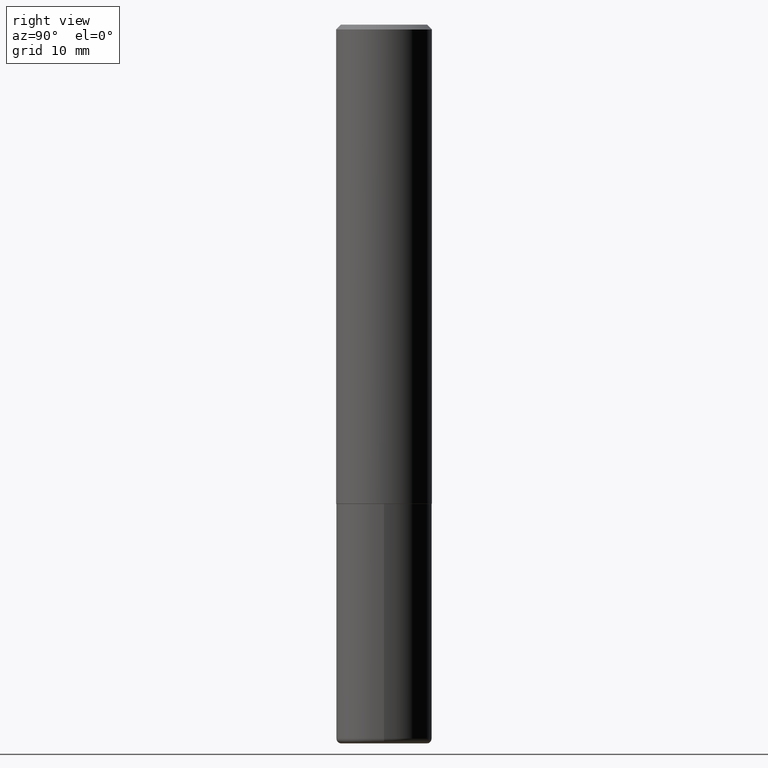
[diagram: clean part render]
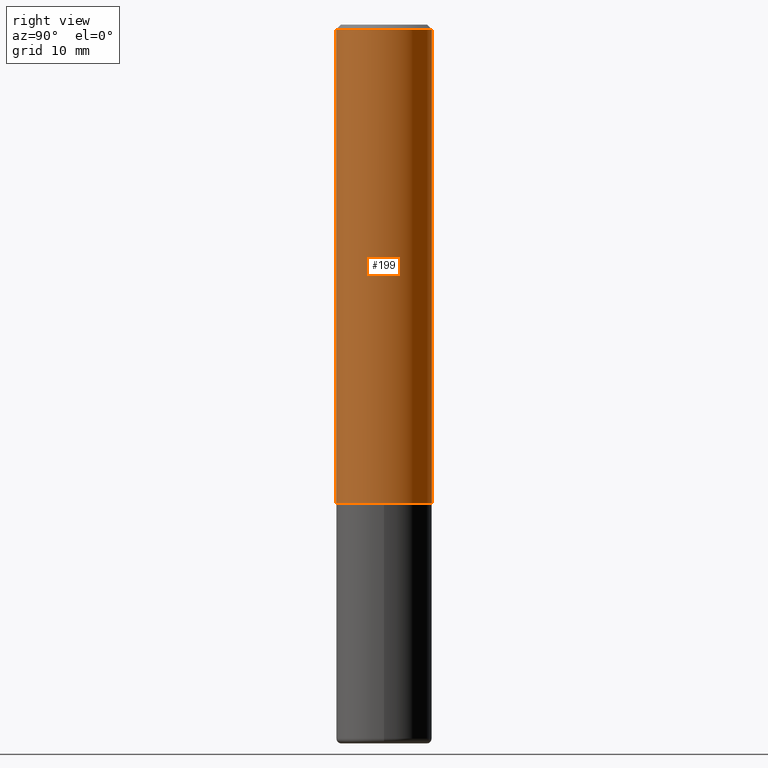
[diagram: same view with one face highlighted and labeled with its STEP entity id]
A machine part, right view. The second image highlights one B-rep face of the part: STEP entity #199.
In plain terms, the highlighted cylindrical surface (partial cylindrical patch) has radius 5 mm, axis along (-0, 0, 1).
Its self-contained STEP definition (entity closure, byte-faithful):
#5 = EDGE_CURVE ( 'NONE', #101, #399, #82, .T. ) ;
#13 = EDGE_CURVE ( 'NONE', #89, #101, #104, .T. ) ;
#14 = VECTOR ( 'NONE', #271, 39.37007874015748143 ) ;
#19 = DIRECTION ( 'NONE',  ( -2.445268841296851437E-29, 3.491767699944464940E-15, 1.000000000000000000 ) ) ;
#35 = DIRECTION ( 'NONE',  ( -6.982962677686265133E-15, -1.000000000000000000, 3.491137977679279029E-15 ) ) ;
#38 = ORIENTED_EDGE ( 'NONE', *, *, #398, .F. ) ;
#63 = CARTESIAN_POINT ( 'NONE',  ( 4.890537682593712927E-31, -6.983535399888942699E-17, -0.02000000000000004205 ) ) ;
#82 = LINE ( 'NONE', #85, #14 ) ;
#84 = DIRECTION ( 'NONE',  ( -2.445268841296851437E-29, 3.491767699944464545E-15, 1.000000000000000000 ) ) ;
#85 = CARTESIAN_POINT ( 'NONE',  ( 1.398703375343757985E-15, 0.1968500000000001360, -6.873544717340683232E-16 ) ) ;
#89 = VERTEX_POINT ( 'NONE', #112 ) ;
#92 = LINE ( 'NONE', #307, #372 ) ;
#101 = VERTEX_POINT ( 'NONE', #203 ) ;
#104 = CIRCLE ( 'NONE', #194, 0.1968500000000002470 ) ;
#105 = VERTEX_POINT ( 'NONE', #169 ) ;
#112 = CARTESIAN_POINT ( 'NONE',  ( -1.374596203102495065E-15, -0.1968500000000071026, -1.967499999999998916 ) ) ;
#163 = CARTESIAN_POINT ( 'NONE',  ( 4.811066445251554069E-29, -6.870052949640732965E-15, -1.967499999999999805 ) ) ;
#169 = CARTESIAN_POINT ( 'NONE',  ( -1.350489030861325626E-15, -0.1968500000000001082, -0.01999999999999935510 ) ) ;
#177 = CYLINDRICAL_SURFACE ( 'NONE', #294, 0.1968500000000001360 ) ;
#185 = CARTESIAN_POINT ( 'NONE',  ( 1.374596203102542200E-15, 0.1968499999999999694, -0.02000000000000072900 ) ) ;
#194 = AXIS2_PLACEMENT_3D ( 'NONE', #163, #269, #406 ) ;
#199 = ADVANCED_FACE ( 'NONE', ( #244 ), #177, .T. ) ;
#203 = CARTESIAN_POINT ( 'NONE',  ( 1.398703375343782440E-15, 0.1968499999999933914, -1.967500000000000471 ) ) ;
#208 = AXIS2_PLACEMENT_3D ( 'NONE', #63, #325, #35 ) ;
#212 = DIRECTION ( 'NONE',  ( -6.982962677686265922E-15, -1.000000000000000000, 3.491767699944464545E-15 ) ) ;
#216 = CIRCLE ( 'NONE', #208, 0.1968500000000000527 ) ;
#229 = ORIENTED_EDGE ( 'NONE', *, *, #13, .T. ) ;
#244 = FACE_OUTER_BOUND ( 'NONE', #300, .T. ) ;
#269 = DIRECTION ( 'NONE',  ( -2.445268841296851437E-29, 3.491767699944464545E-15, 1.000000000000000000 ) ) ;
#271 = DIRECTION ( 'NONE',  ( -2.445268841296851437E-29, 3.491767699944464940E-15, 1.000000000000000000 ) ) ;
#284 = ORIENTED_EDGE ( 'NONE', *, *, #331, .F. ) ;
#294 = AXIS2_PLACEMENT_3D ( 'NONE', #418, #84, #212 ) ;
#300 = EDGE_LOOP ( 'NONE', ( #229, #371, #38, #284 ) ) ;
#307 = CARTESIAN_POINT ( 'NONE',  ( -1.374596203102542397E-15, -0.1968500000000001360, 6.873544717340683232E-16 ) ) ;
#325 = DIRECTION ( 'NONE',  ( -2.445268841296851437E-29, 3.491767699944464545E-15, 1.000000000000000000 ) ) ;
#331 = EDGE_CURVE ( 'NONE', #89, #105, #92, .T. ) ;
#371 = ORIENTED_EDGE ( 'NONE', *, *, #5, .T. ) ;
#372 = VECTOR ( 'NONE', #19, 39.37007874015748143 ) ;
#398 = EDGE_CURVE ( 'NONE', #105, #399, #216, .T. ) ;
#399 = VERTEX_POINT ( 'NONE', #185 ) ;
#406 = DIRECTION ( 'NONE',  ( -6.982962677686265922E-15, -1.000000000000000000, 4.163344669033670112E-15 ) ) ;
#418 = CARTESIAN_POINT ( 'NONE',  ( 0.000000000000000000, 0.000000000000000000, 0.000000000000000000 ) ) ;